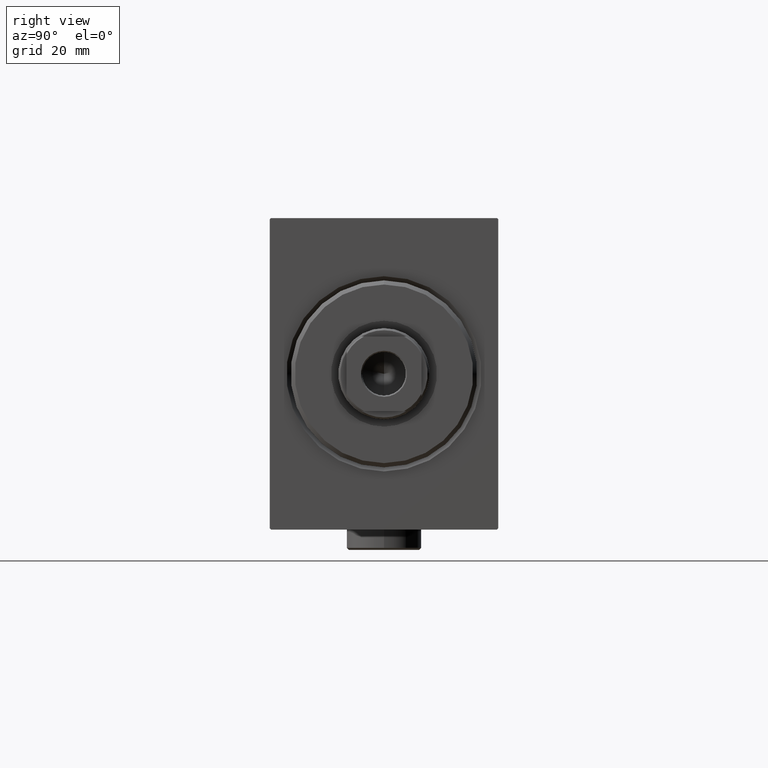
[diagram: clean part render]
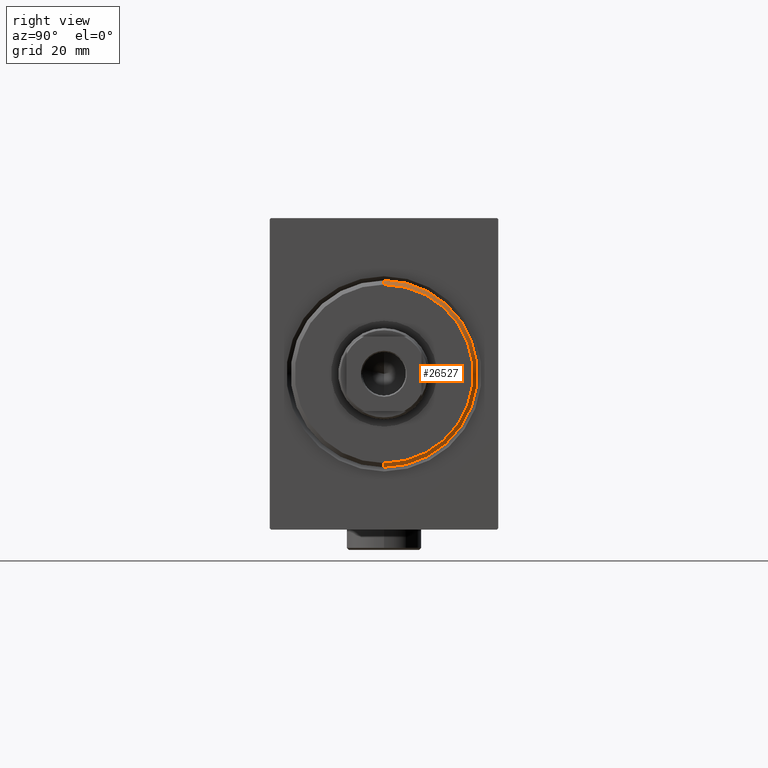
[diagram: same view with one face highlighted and labeled with its STEP entity id]
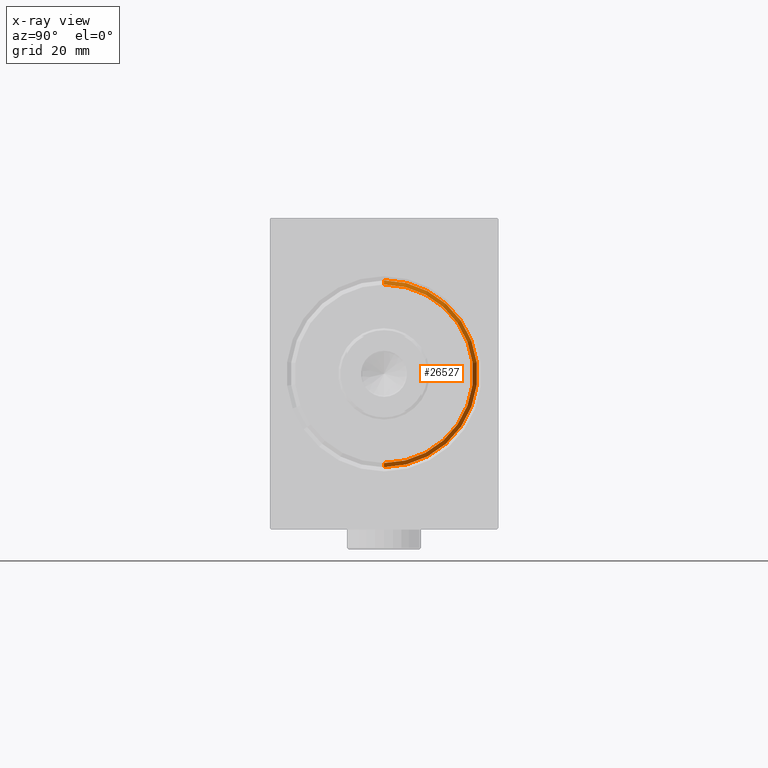
[diagram: x-ray of the same camera — body ghosted, the highlighted face saturated]
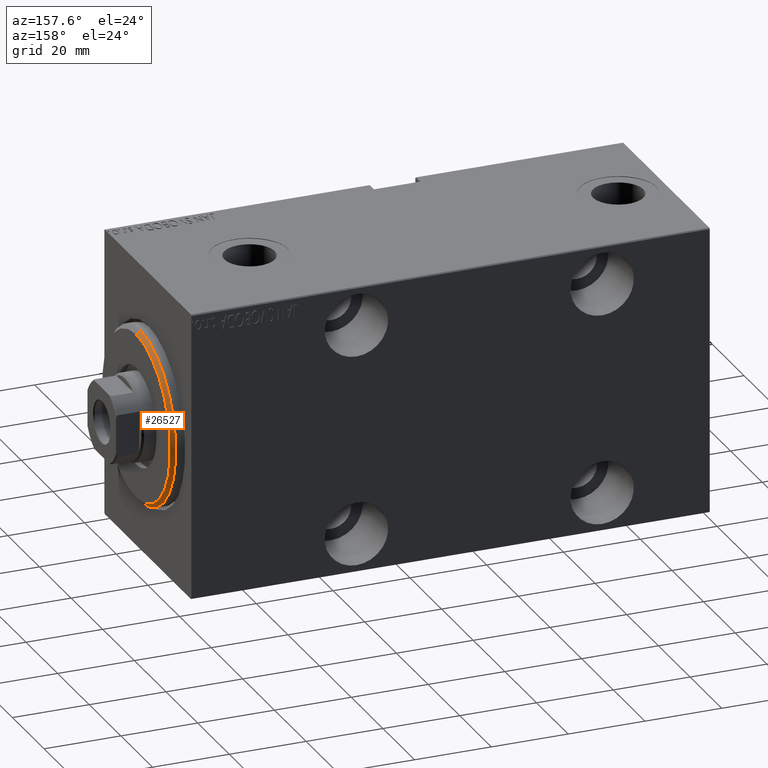
[diagram: same view with one face highlighted and labeled with its STEP entity id]
A machine part, right view. The second image highlights one B-rep face of the part: STEP entity #26527.
The next image is the same camera in x-ray: the body ghosted, the highlighted face saturated — about 0% of this face is hidden behind the body in this view.
A second angle (auxiliary view) of the same face is appended — the face is thin or edge-on in the first view.
In plain terms, the highlighted conical surface has half-angle 45 deg.
Its self-contained STEP definition (entity closure, byte-faithful):
#1357 = VERTEX_POINT ( 'NONE', #44050 ) ;
#1894 = CONICAL_SURFACE ( 'NONE', #34051, 21.50000000000000000, 0.7853981633974533860 ) ;
#3661 = VECTOR ( 'NONE', #28813, 1000.000000000000000 ) ;
#4240 = VERTEX_POINT ( 'NONE', #5262 ) ;
#4869 = VERTEX_POINT ( 'NONE', #10880 ) ;
#5262 = CARTESIAN_POINT ( 'NONE',  ( 2.000000000000006217, 2.755455298081545172E-15, -22.50000000000000355 ) ) ;
#5507 = AXIS2_PLACEMENT_3D ( 'NONE', #11820, #15184, #17880 ) ;
#6460 = VERTEX_POINT ( 'NONE', #38980 ) ;
#7020 = EDGE_CURVE ( 'NONE', #1357, #4869, #9469, .T. ) ;
#7646 = EDGE_LOOP ( 'NONE', ( #9233, #23262, #13169, #16318 ) ) ;
#9135 = DIRECTION ( 'NONE',  ( 0.000000000000000000, 0.000000000000000000, 1.000000000000000000 ) ) ;
#9233 = ORIENTED_EDGE ( 'NONE', *, *, #33299, .F. ) ;
#9469 = LINE ( 'NONE', #38657, #3661 ) ;
#10394 = DIRECTION ( 'NONE',  ( -0.7071067811865439090, 8.659560562354978464E-17, -0.7071067811865512365 ) ) ;
#10880 = CARTESIAN_POINT ( 'NONE',  ( 2.000000000000006217, 0.000000000000000000, 22.50000000000000355 ) ) ;
#11687 = EDGE_CURVE ( 'NONE', #6460, #4240, #37495, .T. ) ;
#11820 = CARTESIAN_POINT ( 'NONE',  ( 3.000000000000000000, 0.000000000000000000, 0.000000000000000000 ) ) ;
#13169 = ORIENTED_EDGE ( 'NONE', *, *, #32027, .F. ) ;
#15184 = DIRECTION ( 'NONE',  ( 1.000000000000000000, -0.000000000000000000, 0.000000000000000000 ) ) ;
#16318 = ORIENTED_EDGE ( 'NONE', *, *, #7020, .F. ) ;
#17880 = DIRECTION ( 'NONE',  ( 0.000000000000000000, 0.000000000000000000, -1.000000000000000000 ) ) ;
#18375 = AXIS2_PLACEMENT_3D ( 'NONE', #21079, #34715, #18380 ) ;
#18380 = DIRECTION ( 'NONE',  ( 0.000000000000000000, 0.000000000000000000, -1.000000000000000000 ) ) ;
#18629 = FACE_OUTER_BOUND ( 'NONE', #7646, .T. ) ;
#21079 = CARTESIAN_POINT ( 'NONE',  ( 2.000000000000006217, 0.000000000000000000, 0.000000000000000000 ) ) ;
#23262 = ORIENTED_EDGE ( 'NONE', *, *, #11687, .T. ) ;
#24830 = CIRCLE ( 'NONE', #5507, 21.50000000000000000 ) ;
#26527 = ADVANCED_FACE ( 'NONE', ( #18629 ), #1894, .T. ) ;
#28813 = DIRECTION ( 'NONE',  ( -0.7071067811865439090, 0.000000000000000000, 0.7071067811865512365 ) ) ;
#30345 = CARTESIAN_POINT ( 'NONE',  ( 3.000000000000000000, 2.632990618166809235E-15, -21.50000000000000000 ) ) ;
#31943 = CIRCLE ( 'NONE', #18375, 22.50000000000000355 ) ;
#32027 = EDGE_CURVE ( 'NONE', #4869, #4240, #31943, .T. ) ;
#32870 = DIRECTION ( 'NONE',  ( -1.000000000000000000, 0.000000000000000000, 0.000000000000000000 ) ) ;
#33299 = EDGE_CURVE ( 'NONE', #6460, #1357, #24830, .T. ) ;
#34051 = AXIS2_PLACEMENT_3D ( 'NONE', #34963, #32870, #9135 ) ;
#34715 = DIRECTION ( 'NONE',  ( -1.000000000000000000, 0.000000000000000000, 0.000000000000000000 ) ) ;
#34963 = CARTESIAN_POINT ( 'NONE',  ( 3.000000000000000000, 0.000000000000000000, 0.000000000000000000 ) ) ;
#35147 = VECTOR ( 'NONE', #10394, 1000.000000000000000 ) ;
#37495 = LINE ( 'NONE', #30345, #35147 ) ;
#38657 = CARTESIAN_POINT ( 'NONE',  ( 3.000000000000000000, 0.000000000000000000, 21.50000000000000000 ) ) ;
#38980 = CARTESIAN_POINT ( 'NONE',  ( 3.000000000000000000, 2.694222958124177204E-15, -21.50000000000000000 ) ) ;
#44050 = CARTESIAN_POINT ( 'NONE',  ( 3.000000000000000000, 0.000000000000000000, 21.50000000000000000 ) ) ;